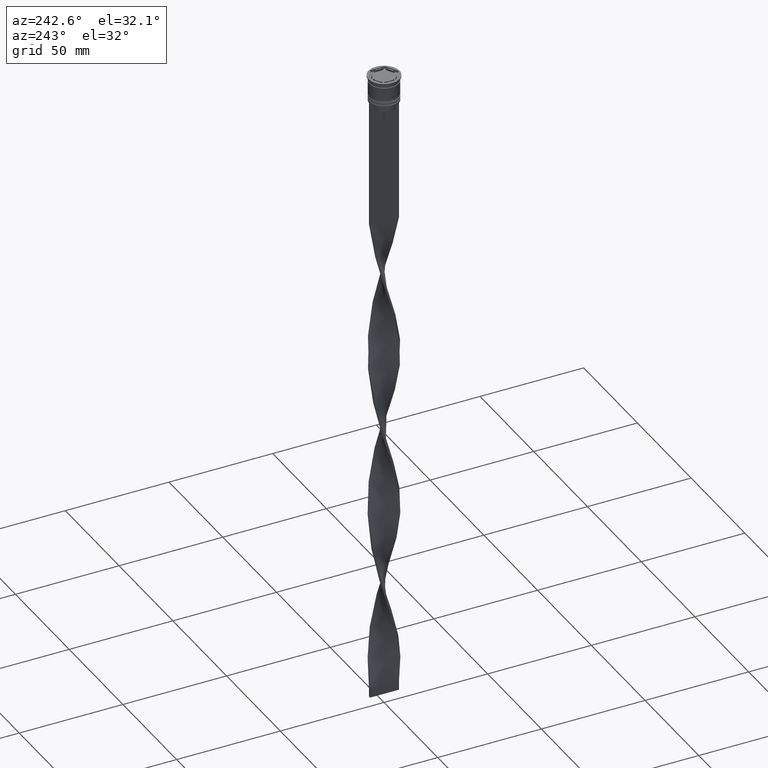
[diagram: clean part render]
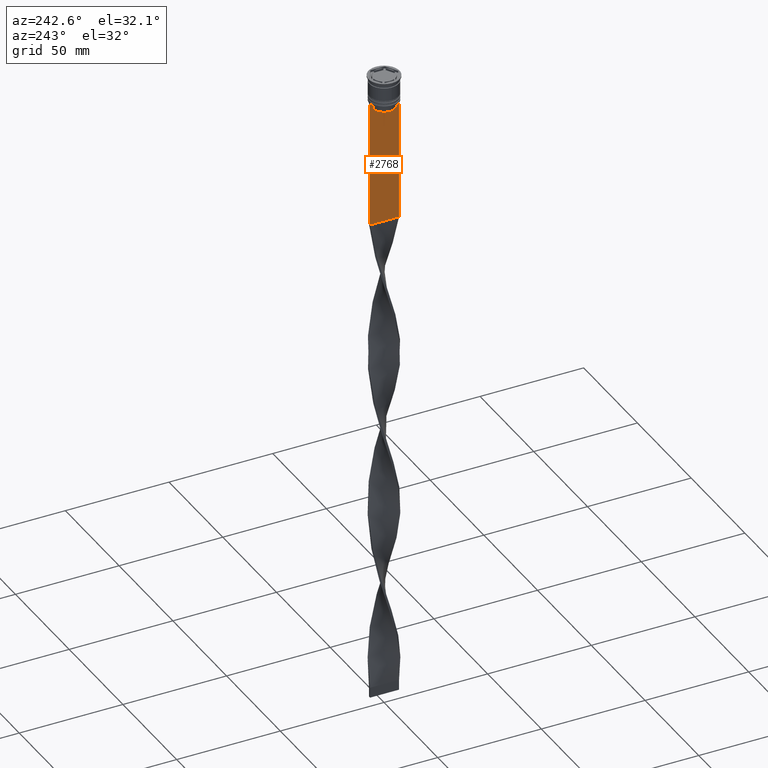
[diagram: same view with one face highlighted and labeled with its STEP entity id]
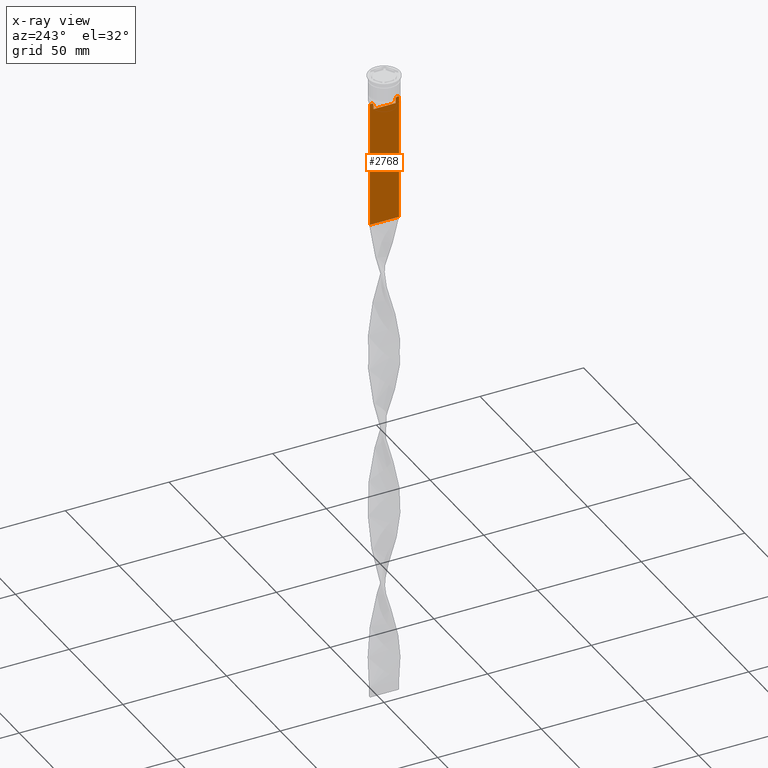
[diagram: x-ray of the same camera — body ghosted, the highlighted face saturated]
A machine part, auxiliary view. The second image highlights one B-rep face of the part: STEP entity #2768.
The next image is the same camera in x-ray: the body ghosted, the highlighted face saturated — about 0% of this face is hidden behind the body in this view.
In plain terms, the highlighted planar face has unit normal (-1, 0, 0).
Its self-contained STEP definition (entity closure, byte-faithful):
#24 = LINE ( 'NONE', #2901, #1866 ) ;
#30 = VERTEX_POINT ( 'NONE', #2016 ) ;
#74 = LINE ( 'NONE', #1286, #1378 ) ;
#101 = ORIENTED_EDGE ( 'NONE', *, *, #3039, .F. ) ;
#137 = EDGE_CURVE ( 'NONE', #3932, #2116, #74, .T. ) ;
#192 = DIRECTION ( 'NONE',  ( 0.000000000000000000, 1.000000000000000000, 0.000000000000000000 ) ) ;
#200 = CARTESIAN_POINT ( 'NONE',  ( -0.5000000000000000000, -5.711478856069293286, -12.66669469529570335 ) ) ;
#205 = PLANE ( 'NONE',  #3521 ) ;
#212 = VERTEX_POINT ( 'NONE', #931 ) ;
#278 = EDGE_CURVE ( 'NONE', #3907, #2616, #2323, .T. ) ;
#374 = CARTESIAN_POINT ( 'NONE',  ( -0.5000000000000000000, 5.376802023508029826, -13.00000000000000178 ) ) ;
#378 = CARTESIAN_POINT ( 'NONE',  ( -0.5000000000000000000, 5.376802023508029826, -15.50000000000000000 ) ) ;
#382 = DIRECTION ( 'NONE',  ( 0.000000000000000000, 0.000000000000000000, -1.000000000000000000 ) ) ;
#383 = CARTESIAN_POINT ( 'NONE',  ( -0.5000000000000000000, -6.881860213634102053, -12.50000000000000000 ) ) ;
#419 = CARTESIAN_POINT ( 'NONE',  ( -0.5000000000000000000, -6.999999999999997335, -12.50000000000000000 ) ) ;
#427 = VERTEX_POINT ( 'NONE', #378 ) ;
#464 = DIRECTION ( 'NONE',  ( -0.000000000000000000, -0.000000000000000000, 1.000000000000000000 ) ) ;
#518 = DIRECTION ( 'NONE',  ( -1.000000000000000000, 0.000000000000000000, 0.000000000000000000 ) ) ;
#542 = ORIENTED_EDGE ( 'NONE', *, *, #137, .T. ) ;
#652 = VECTOR ( 'NONE', #1611, 1000.000000000000000 ) ;
#670 = B_SPLINE_CURVE_WITH_KNOTS ( 'NONE', 3,
 ( #3714, #2721, #200, #3625 ),
 .UNSPECIFIED., .F., .F.,
 ( 4, 4 ),
 ( 0.02539176325380714666, 0.02610162431828674801 ),
 .UNSPECIFIED. ) ;
#702 = LINE ( 'NONE', #1696, #811 ) ;
#740 = VECTOR ( 'NONE', #192, 1000.000000000000000 ) ;
#786 = ORIENTED_EDGE ( 'NONE', *, *, #2624, .F. ) ;
#811 = VECTOR ( 'NONE', #464, 1000.000000000000000 ) ;
#869 = CARTESIAN_POINT ( 'NONE',  ( -0.5000000000000000000, 7.000000000000002665, -73.50000000000001421 ) ) ;
#931 = CARTESIAN_POINT ( 'NONE',  ( -0.5000000000000000000, 5.376802023508029826, -13.00000000000000178 ) ) ;
#934 = CARTESIAN_POINT ( 'NONE',  ( -0.5000000000000000000, 5.376802023508029826, 0.000000000000000000 ) ) ;
#971 = ORIENTED_EDGE ( 'NONE', *, *, #4113, .F. ) ;
#1012 = CARTESIAN_POINT ( 'NONE',  ( -0.5000000000000000000, -6.999999999999997335, 1.535668847618198329 ) ) ;
#1040 = ORIENTED_EDGE ( 'NONE', *, *, #3466, .F. ) ;
#1078 = ORIENTED_EDGE ( 'NONE', *, *, #1629, .F. ) ;
#1122 = CARTESIAN_POINT ( 'NONE',  ( -0.5000000000000000000, 7.000000000000002665, -12.50000000000000000 ) ) ;
#1193 = VECTOR ( 'NONE', #2017, 1000.000000000000000 ) ;
#1286 = CARTESIAN_POINT ( 'NONE',  ( -0.5000000000000000000, 7.000000000000002665, 1.535668847618198329 ) ) ;
#1330 = VECTOR ( 'NONE', #2396, 1000.000000000000000 ) ;
#1347 = ORIENTED_EDGE ( 'NONE', *, *, #1547, .F. ) ;
#1378 = VECTOR ( 'NONE', #382, 1000.000000000000000 ) ;
#1476 = CARTESIAN_POINT ( 'NONE',  ( -0.5000000000000000000, -6.999999999999997335, 1.535668847618198329 ) ) ;
#1539 = FACE_OUTER_BOUND ( 'NONE', #2294, .T. ) ;
#1547 = EDGE_CURVE ( 'NONE', #2603, #3907, #670, .T. ) ;
#1611 = DIRECTION ( 'NONE',  ( 0.000000000000000000, -1.000000000000000000, 0.000000000000000000 ) ) ;
#1615 = DIRECTION ( 'NONE',  ( 0.000000000000000000, 0.000000000000000000, -1.000000000000000000 ) ) ;
#1629 = EDGE_CURVE ( 'NONE', #2493, #2650, #3808, .T. ) ;
#1637 = LINE ( 'NONE', #1663, #1193 ) ;
#1645 = ORIENTED_EDGE ( 'NONE', *, *, #278, .F. ) ;
#1656 = ORIENTED_EDGE ( 'NONE', *, *, #1832, .F. ) ;
#1663 = CARTESIAN_POINT ( 'NONE',  ( -0.5000000000000000000, 5.400000000000003908, -15.50000000000000000 ) ) ;
#1696 = CARTESIAN_POINT ( 'NONE',  ( -0.5000000000000000000, -5.376802023508029826, 0.000000000000000000 ) ) ;
#1701 = CARTESIAN_POINT ( 'NONE',  ( -0.5000000000000000000, -5.376802023508029826, -15.50000000000000000 ) ) ;
#1730 = DIRECTION ( 'NONE',  ( 0.000000000000000000, -1.000000000000000000, 0.000000000000000000 ) ) ;
#1741 = EDGE_CURVE ( 'NONE', #2882, #212, #2903, .T. ) ;
#1742 = ORIENTED_EDGE ( 'NONE', *, *, #1741, .F. ) ;
#1766 = DIRECTION ( 'NONE',  ( 0.000000000000000000, 0.000000000000000000, 1.000000000000000000 ) ) ;
#1832 = EDGE_CURVE ( 'NONE', #30, #2882, #3614, .T. ) ;
#1866 = VECTOR ( 'NONE', #3474, 1000.000000000000000 ) ;
#1876 = EDGE_CURVE ( 'NONE', #2616, #2493, #3947, .T. ) ;
#1913 = CARTESIAN_POINT ( 'NONE',  ( -0.5000000000000000000, -5.376802023508029826, -13.00000000000000178 ) ) ;
#1932 = VECTOR ( 'NONE', #1730, 1000.000000000000000 ) ;
#1937 = LINE ( 'NONE', #934, #2125 ) ;
#1952 = VERTEX_POINT ( 'NONE', #1701 ) ;
#1968 = CARTESIAN_POINT ( 'NONE',  ( -0.5000000000000000000, 5.878775382679629402, -12.50000000000000000 ) ) ;
#2016 = CARTESIAN_POINT ( 'NONE',  ( -0.5000000000000000000, 6.881860213634102053, -12.50000000000000000 ) ) ;
#2017 = DIRECTION ( 'NONE',  ( 0.000000000000000000, -1.000000000000000000, 0.000000000000000000 ) ) ;
#2026 = CARTESIAN_POINT ( 'NONE',  ( -0.5000000000000000000, -6.999999999999997335, -12.50000000000000000 ) ) ;
#2116 = VERTEX_POINT ( 'NONE', #869 ) ;
#2125 = VECTOR ( 'NONE', #1615, 1000.000000000000000 ) ;
#2126 = CARTESIAN_POINT ( 'NONE',  ( -0.5000000000000000000, 5.878775382679629402, -12.50000000000000000 ) ) ;
#2294 = EDGE_LOOP ( 'NONE', ( #1742, #1656, #101, #542, #1040, #1078, #3374, #1645, #1347, #971, #786, #2365 ) ) ;
#2323 = LINE ( 'NONE', #3586, #652 ) ;
#2365 = ORIENTED_EDGE ( 'NONE', *, *, #2417, .F. ) ;
#2396 = DIRECTION ( 'NONE',  ( 0.000000000000000000, -1.000000000000000000, 0.000000000000000000 ) ) ;
#2417 = EDGE_CURVE ( 'NONE', #212, #427, #1937, .T. ) ;
#2493 = VERTEX_POINT ( 'NONE', #3155 ) ;
#2603 = VERTEX_POINT ( 'NONE', #1913 ) ;
#2607 = DIRECTION ( 'NONE',  ( 0.000000000000000000, 0.000000000000000000, -1.000000000000000000 ) ) ;
#2616 = VERTEX_POINT ( 'NONE', #383 ) ;
#2624 = EDGE_CURVE ( 'NONE', #427, #1952, #1637, .T. ) ;
#2650 = VERTEX_POINT ( 'NONE', #3136 ) ;
#2699 = CARTESIAN_POINT ( 'NONE',  ( -0.5000000000000000000, -5.878775382679629402, -12.50000000000000000 ) ) ;
#2721 = CARTESIAN_POINT ( 'NONE',  ( -0.5000000000000000000, -5.544156999454441959, -12.83336396790503642 ) ) ;
#2768 = ADVANCED_FACE ( 'NONE', ( #1539 ), #205, .T. ) ;
#2882 = VERTEX_POINT ( 'NONE', #2126 ) ;
#2901 = CARTESIAN_POINT ( 'NONE',  ( -0.5000000000000000000, -6.999999999999997335, -12.50000000000000000 ) ) ;
#2903 = B_SPLINE_CURVE_WITH_KNOTS ( 'NONE', 3,
 ( #1968, #3168, #3228, #374 ),
 .UNSPECIFIED., .F., .F.,
 ( 4, 4 ),
 ( 0.01003009312103698807, 0.01073859663834952557 ),
 .UNSPECIFIED. ) ;
#3039 = EDGE_CURVE ( 'NONE', #3932, #30, #24, .T. ) ;
#3120 = VECTOR ( 'NONE', #2607, 1000.000000000000000 ) ;
#3136 = CARTESIAN_POINT ( 'NONE',  ( -0.5000000000000000000, -6.999999999999997335, -73.50000000000001421 ) ) ;
#3155 = CARTESIAN_POINT ( 'NONE',  ( -0.5000000000000000000, -6.999999999999997335, -12.50000000000000000 ) ) ;
#3168 = CARTESIAN_POINT ( 'NONE',  ( -0.5000000000000000000, 5.711478846560141598, -12.66669470477064685 ) ) ;
#3228 = CARTESIAN_POINT ( 'NONE',  ( -0.5000000000000000000, 5.544156989057553275, -12.83336397825725861 ) ) ;
#3278 = LINE ( 'NONE', #3883, #740 ) ;
#3374 = ORIENTED_EDGE ( 'NONE', *, *, #1876, .F. ) ;
#3466 = EDGE_CURVE ( 'NONE', #2650, #2116, #3278, .T. ) ;
#3474 = DIRECTION ( 'NONE',  ( 0.000000000000000000, -1.000000000000000000, 0.000000000000000000 ) ) ;
#3521 = AXIS2_PLACEMENT_3D ( 'NONE', #1476, #518, #1766 ) ;
#3586 = CARTESIAN_POINT ( 'NONE',  ( -0.5000000000000000000, -6.999999999999997335, -12.50000000000000000 ) ) ;
#3614 = LINE ( 'NONE', #419, #1932 ) ;
#3625 = CARTESIAN_POINT ( 'NONE',  ( -0.5000000000000000000, -5.878775382679629402, -12.50000000000000000 ) ) ;
#3714 = CARTESIAN_POINT ( 'NONE',  ( -0.5000000000000000000, -5.376802023508029826, -13.00000000000000178 ) ) ;
#3808 = LINE ( 'NONE', #1012, #3120 ) ;
#3883 = CARTESIAN_POINT ( 'NONE',  ( -0.5000000000000000000, -6.999999999999997335, -73.50000000000001421 ) ) ;
#3907 = VERTEX_POINT ( 'NONE', #2699 ) ;
#3932 = VERTEX_POINT ( 'NONE', #1122 ) ;
#3947 = LINE ( 'NONE', #2026, #1330 ) ;
#4113 = EDGE_CURVE ( 'NONE', #1952, #2603, #702, .T. ) ;